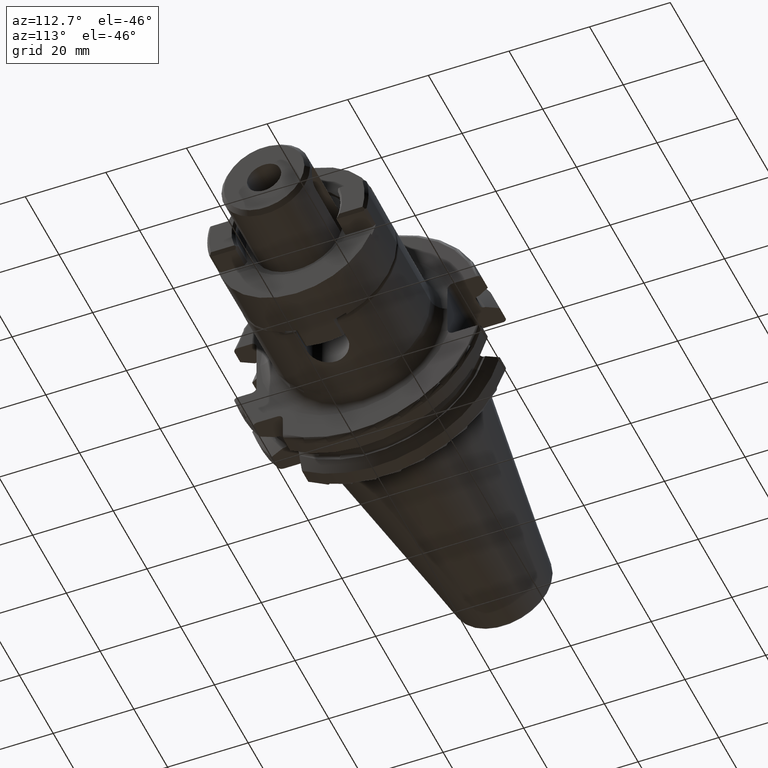
[diagram: clean part render]
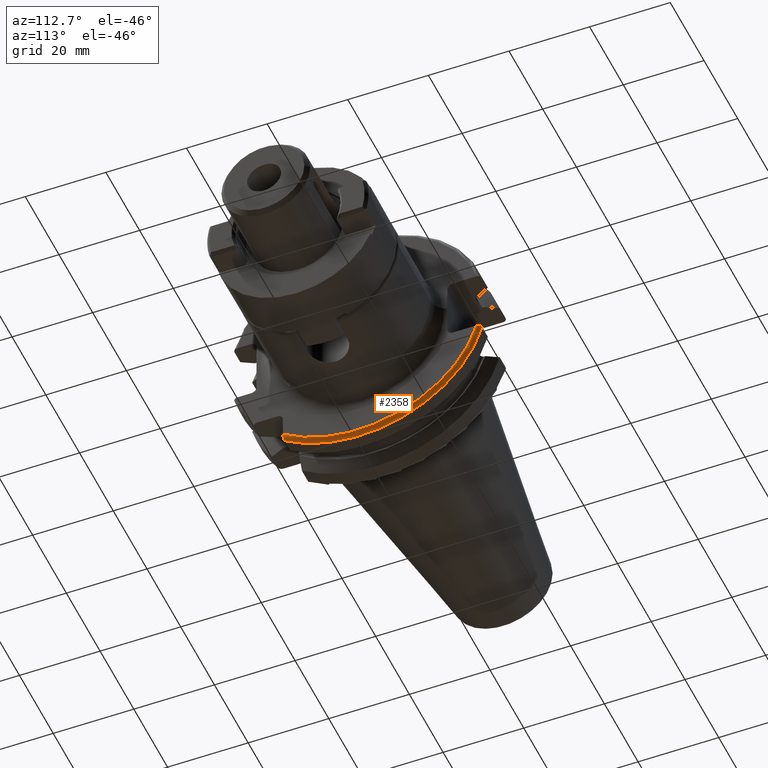
[diagram: same view with one face highlighted and labeled with its STEP entity id]
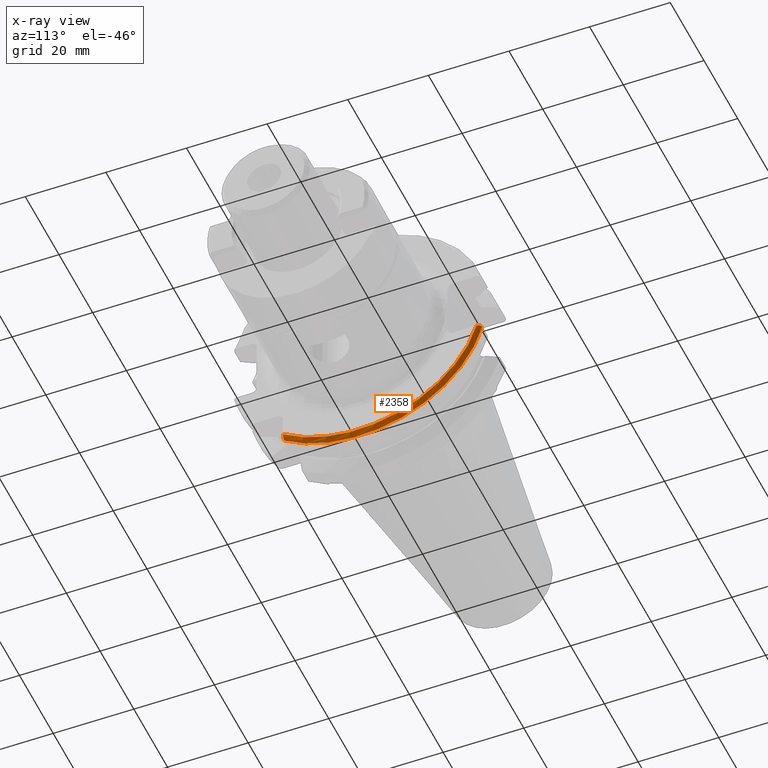
[diagram: x-ray of the same camera — body ghosted, the highlighted face saturated]
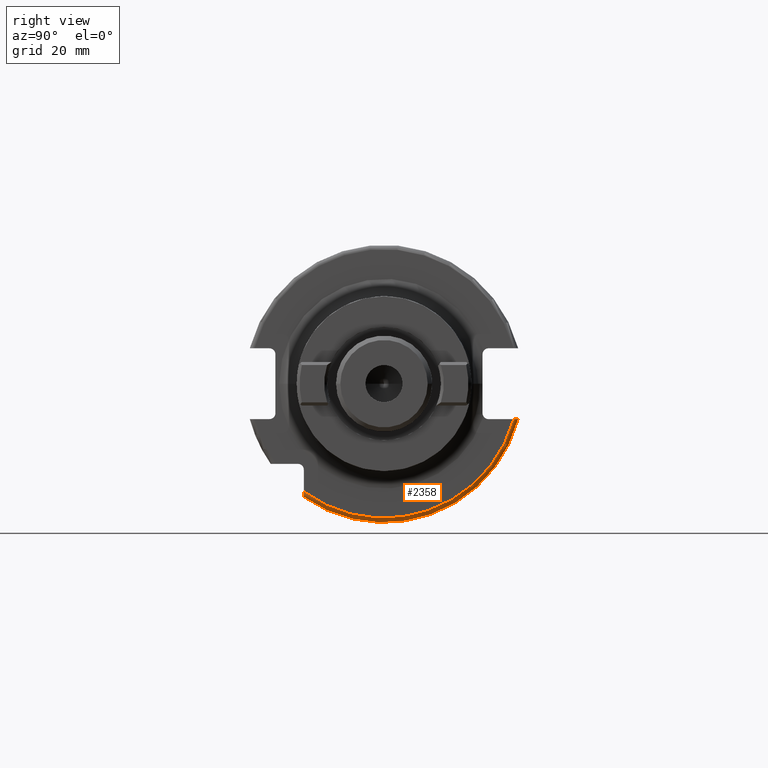
[diagram: same view with one face highlighted and labeled with its STEP entity id]
A machine part, auxiliary view. The second image highlights one B-rep face of the part: STEP entity #2358.
The next image is the same camera in x-ray: the body ghosted, the highlighted face saturated — about 0% of this face is hidden behind the body in this view.
A second angle (right view) of the same face is appended — the face is thin or edge-on in the first view.
In plain terms, the highlighted toroidal blend (fillet) surface has major radius 30.7625 mm and minor (blend) radius 1 mm.
Its self-contained STEP definition (entity closure, byte-faithful):
#295=CARTESIAN_POINT('',(1.805E1,3.071231684927E1,-8.1E0));
#296=CARTESIAN_POINT('',(1.812702529647E1,3.071231684927E1,-8.1E0));
#297=CARTESIAN_POINT('',(1.827656518037E1,3.069444719907E1,-8.1E0));
#298=CARTESIAN_POINT('',(1.849273698584E1,3.061544862934E1,-8.1E0));
#299=CARTESIAN_POINT('',(1.868460186607E1,3.048863686818E1,-8.1E0));
#300=CARTESIAN_POINT('',(1.884263679922E1,3.032251203229E1,-8.1E0));
#301=CARTESIAN_POINT('',(1.896052984725E1,3.012566774399E1,-8.1E0));
#302=CARTESIAN_POINT('',(1.903334281973E1,2.990707436768E1,-8.1E0));
#303=CARTESIAN_POINT('',(1.905E1,2.975515277820E1,-8.1E0));
#304=CARTESIAN_POINT('',(1.905E1,2.967695075728E1,-8.1E0));
#306=CARTESIAN_POINT('',(1.905E1,-1.835E1,-2.469025933946E1));
#307=CARTESIAN_POINT('',(1.905E1,-1.835E1,-2.477827489148E1));
#308=CARTESIAN_POINT('',(1.903550352933E1,-1.835E1,-2.495194722121E1));
#309=CARTESIAN_POINT('',(1.896629632127E1,-1.835E1,-2.521302960336E1));
#310=CARTESIAN_POINT('',(1.884964259244E1,-1.835E1,-2.545175760021E1));
#311=CARTESIAN_POINT('',(1.869337393206E1,-1.835E1,-2.565125079223E1));
#312=CARTESIAN_POINT('',(1.850440420446E1,-1.835E1,-2.580344847600E1));
#313=CARTESIAN_POINT('',(1.828893233655E1,-1.835E1,-2.590127687802E1));
#314=CARTESIAN_POINT('',(1.813210111876E1,-1.835E1,-2.592554543785E1));
#315=CARTESIAN_POINT('',(1.805E1,-1.835E1,-2.592554543785E1));
#317=CARTESIAN_POINT('',(1.905E1,0.E0,0.E0));
#318=DIRECTION('',(-1.E0,0.E0,0.E0));
#319=DIRECTION('',(0.E0,9.647119303464E-1,-2.633075985372E-1));
#320=AXIS2_PLACEMENT_3D('',#317,#318,#319);
#804=CARTESIAN_POINT('',(1.805E1,0.E0,0.E0));
#805=DIRECTION('',(-1.E0,0.E0,0.E0));
#806=DIRECTION('',(0.E0,9.669363825036E-1,-2.550177095632E-1));
#807=AXIS2_PLACEMENT_3D('',#804,#805,#806);
#1738=CARTESIAN_POINT('',(1.805E1,3.071231684927E1,-8.1E0));
#1739=VERTEX_POINT('',#1738);
#1751=VERTEX_POINT('',#304);
#1763=CARTESIAN_POINT('',(1.905E1,-1.835E1,-2.469025933946E1));
#1764=VERTEX_POINT('',#1763);
#1765=CARTESIAN_POINT('',(1.805E1,-1.835E1,-2.592554543785E1));
#1766=VERTEX_POINT('',#1765);
#2344=CARTESIAN_POINT('',(1.805E1,0.E0,0.E0));
#2345=DIRECTION('',(1.E0,0.E0,0.E0));
#2346=DIRECTION('',(0.E0,-1.E0,0.E0));
#2347=AXIS2_PLACEMENT_3D('',#2344,#2345,#2346);
#2348=TOROIDAL_SURFACE('',#2347,3.07625E1,1.E0);
#2350=ORIENTED_EDGE('',*,*,#2349,.F.);
#2352=ORIENTED_EDGE('',*,*,#2351,.T.);
#2354=ORIENTED_EDGE('',*,*,#2353,.F.);
#2355=ORIENTED_EDGE('',*,*,#2107,.F.);
#2356=EDGE_LOOP('',(#2350,#2352,#2354,#2355));
#2357=FACE_OUTER_BOUND('',#2356,.F.);
#2358=ADVANCED_FACE('',(#2357),#2348,.T.);
#305=B_SPLINE_CURVE_WITH_KNOTS('',3,(#295,#296,#297,#298,#299,#300,#301,#302,
#303,#304),.UNSPECIFIED.,.F.,.F.,(4,1,1,1,1,1,1,4),(0.E0,1.428571428571E-1,
2.857142857143E-1,4.285714285714E-1,5.714285714286E-1,7.142857142857E-1,
8.571428571429E-1,1.E0),.UNSPECIFIED.);
#316=B_SPLINE_CURVE_WITH_KNOTS('',3,(#306,#307,#308,#309,#310,#311,#312,#313,
#314,#315),.UNSPECIFIED.,.F.,.F.,(4,1,1,1,1,1,1,4),(0.E0,1.428571428571E-1,
2.857142857143E-1,4.285714285714E-1,5.714285714286E-1,7.142857142857E-1,
8.571428571429E-1,1.E0),.UNSPECIFIED.);
#321=CIRCLE('',#320,3.07625E1);
#808=CIRCLE('',#807,3.17625E1);
#2107=EDGE_CURVE('',#1751,#1764,#321,.T.);
#2349=EDGE_CURVE('',#1739,#1751,#305,.T.);
#2351=EDGE_CURVE('',#1739,#1766,#808,.T.);
#2353=EDGE_CURVE('',#1764,#1766,#316,.T.);